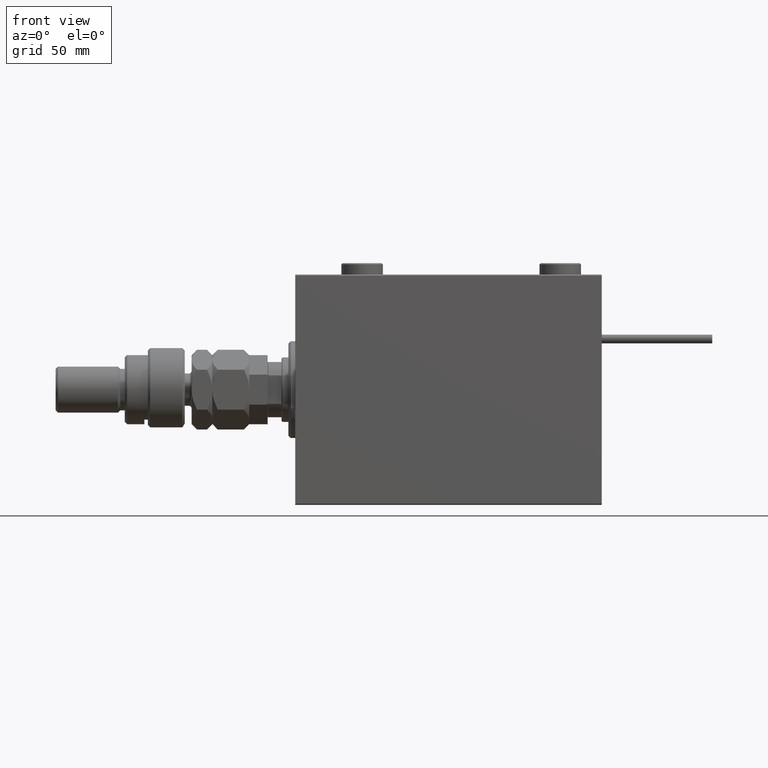
[diagram: clean part render]
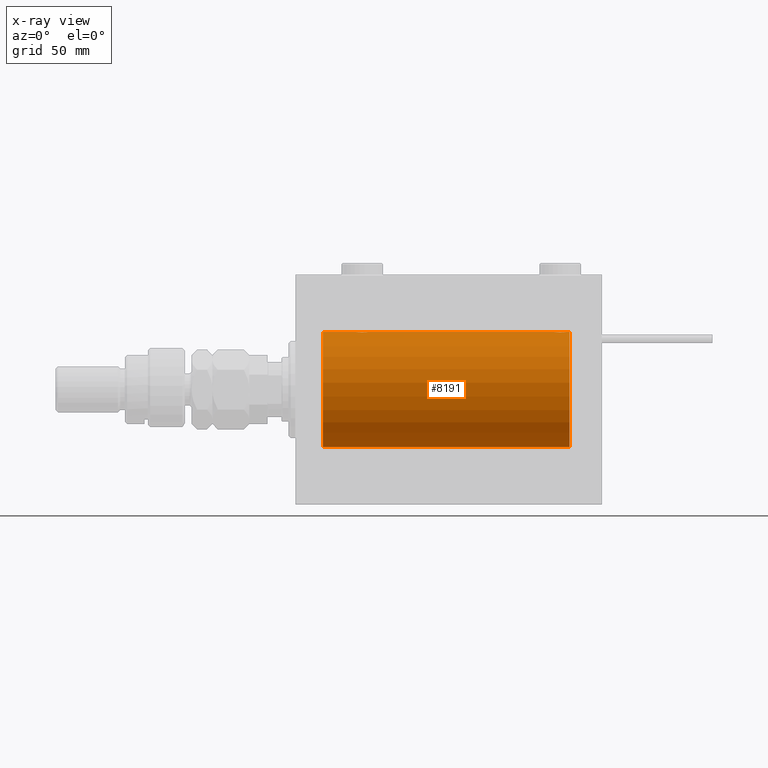
[diagram: x-ray — body ghosted, one internal face saturated and labeled with its STEP entity id]
A machine part, front view, then the same camera in x-ray: the body is ghosted and one INTERNAL B-rep face — a face not visible from any outside direction — is saturated and labeled: STEP entity #8191.
In plain terms, the highlighted cylindrical surface (partial cylindrical patch) has radius 25 mm, axis along (-1, -0, -0).
Its self-contained STEP definition (entity closure, byte-faithful):
#95 = CARTESIAN_POINT ( 'NONE',  ( 26.57985090779070347, -0.6480119923854229524, 24.99212088949390420 ) ) ;
#580 = CARTESIAN_POINT ( 'NONE',  ( 117.2476025101955628, -1.106703319666888508, -24.97594585958024282 ) ) ;
#858 = CARTESIAN_POINT ( 'NONE',  ( 117.4201490922092859, -0.6480119923854245068, -24.99212088949390775 ) ) ;
#1691 = CARTESIAN_POINT ( 'NONE',  ( 113.3487886644089286, -1.884161199660627339, -24.92916496727982789 ) ) ;
#1751 = CARTESIAN_POINT ( 'NONE',  ( 28.67052319885732103, -2.483544361357271857, 24.87635491893501438 ) ) ;
#1774 = ORIENTED_EDGE ( 'NONE', *, *, #32799, .T. ) ;
#2096 = CARTESIAN_POINT ( 'NONE',  ( 27.47743225659810307, -1.989585286700239708, -24.92087098724766392 ) ) ;
#2358 = CARTESIAN_POINT ( 'NONE',  ( 114.1921165759419523, -2.371528299825759856, 24.88734287464370709 ) ) ;
#2368 = CARTESIAN_POINT ( 'NONE',  ( 28.83676410361456632, -2.500125740978188738, -24.87467329022545215 ) ) ;
#2797 = CARTESIAN_POINT ( 'NONE',  ( 31.50000000000000000, -3.359922002512890391E-15, 25.00000000000000000 ) ) ;
#2911 = CARTESIAN_POINT ( 'NONE',  ( 31.49999999999999289, -0.1631750940176170117, -25.00000000000000711 ) ) ;
#3237 = LINE ( 'NONE', #11503, #31576 ) ;
#3640 = CARTESIAN_POINT ( 'NONE',  ( 11.99999999999999645, 0.000000000000000000, 0.000000000000000000 ) ) ;
#3648 = LINE ( 'NONE', #37279, #13373 ) ;
#4517 = CARTESIAN_POINT ( 'NONE',  ( 26.75239748980449761, -1.106703319666885399, 24.97594585958023572 ) ) ;
#4554 = CARTESIAN_POINT ( 'NONE',  ( 119.0000000000000000, 3.061616997868383043E-15, -25.00000000000000000 ) ) ;
#5884 = CARTESIAN_POINT ( 'NONE',  ( 28.35095609830903740, -2.419770561643910689, 24.88263927071751169 ) ) ;
#6151 = CARTESIAN_POINT ( 'NONE',  ( 29.80435660916301899, -2.372734907014175665, 24.88722742718433878 ) ) ;
#6200 = DIRECTION ( 'NONE',  ( -1.000000000000000000, 0.000000000000000000, 0.000000000000000000 ) ) ;
#6209 = CARTESIAN_POINT ( 'NONE',  ( 112.5000000000000000, -1.940203396391078535E-23, 25.00000000000000000 ) ) ;
#6291 = AXIS2_PLACEMENT_3D ( 'NONE', #3640, #16046, #16325 ) ;
#6496 = CARTESIAN_POINT ( 'NONE',  ( 31.37215969408608274, -0.8058335233485438565, -24.98746277938383997 ) ) ;
#6758 = CARTESIAN_POINT ( 'NONE',  ( 117.2460637909406813, -1.109818057797417490, 24.97580694515541921 ) ) ;
#7025 = CARTESIAN_POINT ( 'NONE',  ( 113.0125018416559755, -1.525407911884377965, 24.95379469572361941 ) ) ;
#7035 = CARTESIAN_POINT ( 'NONE',  ( 28.35439333851368815, -2.420689345803754833, -24.88254961038873958 ) ) ;
#7916 = VERTEX_POINT ( 'NONE', #19459 ) ;
#7984 = B_SPLINE_CURVE_WITH_KNOTS ( 'NONE', 3,
 ( #6209, #52227, #39833, #53320, #47828, #44793, #22771, #7025, #23325, #35709, #43978, #23857, #39565, #2358, #40650, #36521, #18626, #27709, #31021, #31306, #19191, #35978, #52507, #52775, #48112, #27165, #48648, #10907, #6758, #23596, #21079, #33466 ),
 .UNSPECIFIED., .F., .F.,
 ( 4, 2, 2, 2, 2, 2, 2, 2, 2, 2, 2, 2, 2, 2, 2, 4 ),
 ( 0.007821024441662341453, 0.008309723826317951326, 0.008798423210973559463, 0.009287122595629169336, 0.009775821980284777474, 0.01026452136494038735, 0.01075322074959599548, 0.01124192013425160536, 0.01173061951890721349, 0.01221931890356282337, 0.01270801828821843324, 0.01319671767287404138, 0.01368541705752964951, 0.01417411644218525939, 0.01466281582684086926, 0.01564021459615210288 ),
 .UNSPECIFIED. ) ;
#8191 = ADVANCED_FACE ( 'NONE', ( #28296 ), #45110, .F. ) ;
#8400 = CARTESIAN_POINT ( 'NONE',  ( 27.47463817756919369, -1.987446652080264720, 24.92104239223420592 ) ) ;
#9209 = CARTESIAN_POINT ( 'NONE',  ( 31.49999999999998579, -0.3305063766663721148, 25.00000000000000000 ) ) ;
#9571 = CARTESIAN_POINT ( 'NONE',  ( 26.50000000000000355, -1.828402720252098442E-15, -25.00000000000000000 ) ) ;
#9690 = CARTESIAN_POINT ( 'NONE',  ( 115.6490439016909590, -2.419770561643918683, -24.88263927071750814 ) ) ;
#9962 = CARTESIAN_POINT ( 'NONE',  ( 114.3543933385136881, -2.420689345803766823, -24.88254961038873958 ) ) ;
#10529 = CIRCLE ( 'NONE', #21935, 25.00000000000000000 ) ;
#10907 = CARTESIAN_POINT ( 'NONE',  ( 117.1682764149395695, -1.255214705003179221, 24.96884293994577675 ) ) ;
#10920 = CARTESIAN_POINT ( 'NONE',  ( 28.67403429960539896, -2.484007091859758543, -24.87630842367763151 ) ) ;
#11191 = CARTESIAN_POINT ( 'NONE',  ( 29.80788342405805835, -2.371528299825740760, -24.88734287464371064 ) ) ;
#11503 = CARTESIAN_POINT ( 'NONE',  ( 119.0000000000000000, 0.000000000000000000, 25.00000000000000000 ) ) ;
#13271 = CARTESIAN_POINT ( 'NONE',  ( 115.8078834240580619, -2.371528299825759412, -24.88734287464370709 ) ) ;
#13373 = VECTOR ( 'NONE', #33405, 1000.000000000000000 ) ;
#13553 = CARTESIAN_POINT ( 'NONE',  ( 116.2538319542450580, -2.169003991399878650, -24.90589728951138326 ) ) ;
#14000 = VERTEX_POINT ( 'NONE', #31122 ) ;
#14155 = CARTESIAN_POINT ( 'NONE',  ( 30.52256774340189693, -1.989585286700245037, 24.92087098724766747 ) ) ;
#14254 = EDGE_CURVE ( 'NONE', #49019, #43169, #20906, .T. ) ;
#14365 = CARTESIAN_POINT ( 'NONE',  ( 116.9874981583439393, -1.525407911884375300, -24.95379469572361586 ) ) ;
#14446 = EDGE_CURVE ( 'NONE', #38885, #18944, #48141, .T. ) ;
#14479 = VERTEX_POINT ( 'NONE', #18657 ) ;
#14776 = CARTESIAN_POINT ( 'NONE',  ( 30.52536182243080631, -1.987446652080256504, -24.92104239223419881 ) ) ;
#15044 = CARTESIAN_POINT ( 'NONE',  ( 26.75393620905933645, -1.109818057797413715, -24.97580694515542277 ) ) ;
#15597 = CARTESIAN_POINT ( 'NONE',  ( 27.74915976075944712, -2.170728182476714174, -24.90574631553725027 ) ) ;
#15683 = B_SPLINE_CURVE_WITH_KNOTS ( 'NONE', 3,
 ( #16405, #21081, #20822, #95, #33211, #4517, #33739, #37621, #50272, #29337, #8400, #37874, #50546, #18026, #5884, #1751, #18566, #39773, #18853, #47222, #6151, #27105, #26828, #14155, #35101, #31244, #34554, #30688, #51352, #39507, #9209, #52447 ),
 .UNSPECIFIED., .F., .F.,
 ( 4, 2, 2, 2, 2, 2, 2, 2, 2, 2, 2, 2, 2, 2, 2, 4 ),
 ( 0.007821024441662275534, 0.008309723826317880202, 0.008798423210973486605, 0.009287122595629093008, 0.009775821980284697676, 0.01026452136494030234, 0.01075322074959590875, 0.01124192013425151515, 0.01173061951890711982, 0.01221931890356272449, 0.01270801828821833089, 0.01319671767287393729, 0.01368541705752954196, 0.01417411644218514663, 0.01466281582684075303, 0.01564021459615196410 ),
 .UNSPECIFIED. ) ;
#16046 = DIRECTION ( 'NONE',  ( -1.000000000000000000, 0.000000000000000000, 0.000000000000000000 ) ) ;
#16095 = VERTEX_POINT ( 'NONE', #2797 ) ;
#16325 = DIRECTION ( 'NONE',  ( 0.000000000000000000, 0.000000000000000000, 1.000000000000000000 ) ) ;
#16405 = CARTESIAN_POINT ( 'NONE',  ( 26.50000000000000355, -1.940558383798427991E-23, 25.00000000000000000 ) ) ;
#17689 = CARTESIAN_POINT ( 'NONE',  ( 116.8841238278647126, -1.651251241585108387, -24.94567559498348430 ) ) ;
#17960 = CARTESIAN_POINT ( 'NONE',  ( 117.5000000000000142, 3.061616978466108082E-15, -25.00000000000000000 ) ) ;
#18026 = CARTESIAN_POINT ( 'NONE',  ( 28.19211657594193809, -2.371528299825749198, 24.88734287464370709 ) ) ;
#18230 = CARTESIAN_POINT ( 'NONE',  ( 116.5253618224307957, -1.987446652080270271, -24.92104239223420592 ) ) ;
#18503 = CARTESIAN_POINT ( 'NONE',  ( 113.1181404585135652, -1.653834020452947362, -24.94550385189584318 ) ) ;
#18566 = CARTESIAN_POINT ( 'NONE',  ( 28.83293504821940090, -2.499872792855082793, 24.87469871246082320 ) ) ;
#18617 = DIRECTION ( 'NONE',  ( 0.000000000000000000, 0.000000000000000000, 1.000000000000000000 ) ) ;
#18626 = CARTESIAN_POINT ( 'NONE',  ( 114.8329350482193831, -2.499872792855093451, 24.87469871246082320 ) ) ;
#18657 = CARTESIAN_POINT ( 'NONE',  ( 11.99999999999999645, 3.061616997868383043E-15, -25.00000000000000000 ) ) ;
#18796 = AXIS2_PLACEMENT_3D ( 'NONE', #24183, #53636, #40985 ) ;
#18846 = EDGE_CURVE ( 'NONE', #14000, #24936, #3237, .T. ) ;
#18853 = CARTESIAN_POINT ( 'NONE',  ( 29.32596570039460104, -2.484007091859765204, 24.87630842367763506 ) ) ;
#18921 = CARTESIAN_POINT ( 'NONE',  ( 31.50000000000000000, 3.061616978460191625E-15, -25.00000000000000000 ) ) ;
#18944 = VERTEX_POINT ( 'NONE', #40712 ) ;
#19191 = CARTESIAN_POINT ( 'NONE',  ( 115.8043566091630083, -2.372734907014184991, 24.88722742718433523 ) ) ;
#19201 = CARTESIAN_POINT ( 'NONE',  ( 27.11814045851354393, -1.653834020452933151, -24.94550385189584674 ) ) ;
#19459 = CARTESIAN_POINT ( 'NONE',  ( 11.99999999999999645, 0.000000000000000000, 25.00000000000000000 ) ) ;
#19728 = EDGE_CURVE ( 'NONE', #18944, #35936, #50297, .T. ) ;
#19746 = CARTESIAN_POINT ( 'NONE',  ( 31.48417840057656747, -0.3254210271412188993, -24.99840249400844883 ) ) ;
#19891 = VECTOR ( 'NONE', #37047, 1000.000000000000000 ) ;
#20635 = DIRECTION ( 'NONE',  ( -1.000000000000000000, -0.000000000000000000, -0.000000000000000000 ) ) ;
#20822 = CARTESIAN_POINT ( 'NONE',  ( 26.51582159942343608, -0.3254210271412225630, 24.99840249400844883 ) ) ;
#20906 = LINE ( 'NONE', #24749, #52444 ) ;
#21079 = CARTESIAN_POINT ( 'NONE',  ( 117.5000000000000284, -0.3305063766663758895, 25.00000000000000355 ) ) ;
#21081 = CARTESIAN_POINT ( 'NONE',  ( 26.50000000000000711, -0.1631750940176214526, 25.00000000000000711 ) ) ;
#21830 = CARTESIAN_POINT ( 'NONE',  ( 115.1670649517806169, -2.499872792855092563, -24.87469871246082320 ) ) ;
#21935 = AXIS2_PLACEMENT_3D ( 'NONE', #27973, #6200, #18617 ) ;
#22011 = EDGE_CURVE ( 'NONE', #50820, #7916, #45886, .T. ) ;
#22369 = CARTESIAN_POINT ( 'NONE',  ( 117.1701129028092652, -1.252049606094348011, -24.96900299967627745 ) ) ;
#22571 = VECTOR ( 'NONE', #43736, 1000.000000000000000 ) ;
#22771 = CARTESIAN_POINT ( 'NONE',  ( 112.8298870971907917, -1.252049606094350453, 24.96900299967627390 ) ) ;
#22813 = VECTOR ( 'NONE', #41230, 1000.000000000000000 ) ;
#23107 = EDGE_CURVE ( 'NONE', #49019, #14000, #10529, .T. ) ;
#23325 = CARTESIAN_POINT ( 'NONE',  ( 113.1158761721352732, -1.651251241585110163, 24.94567559498348430 ) ) ;
#23337 = CARTESIAN_POINT ( 'NONE',  ( 31.17011290280924740, -1.252049606094333578, -24.96900299967627390 ) ) ;
#23596 = CARTESIAN_POINT ( 'NONE',  ( 117.4334935523974934, -0.6588655613945869627, 24.99312727339970053 ) ) ;
#23605 = CARTESIAN_POINT ( 'NONE',  ( 29.32947680114268962, -2.483544361357264751, -24.87635491893502149 ) ) ;
#23607 = EDGE_LOOP ( 'NONE', ( #52416, #31756, #51770, #39743, #39322, #28265, #46568, #39290, #1774, #42788, #38664, #51482 ) ) ;
#23857 = CARTESIAN_POINT ( 'NONE',  ( 113.7461680457549846, -2.169003991399879983, 24.90589728951138326 ) ) ;
#24032 = EDGE_CURVE ( 'NONE', #38024, #24936, #7984, .T. ) ;
#24161 = CARTESIAN_POINT ( 'NONE',  ( 119.0000000000000000, 0.000000000000000000, 25.00000000000000000 ) ) ;
#24183 = CARTESIAN_POINT ( 'NONE',  ( 119.0000000000000000, 0.000000000000000000, 0.000000000000000000 ) ) ;
#24749 = CARTESIAN_POINT ( 'NONE',  ( 119.0000000000000000, 3.061616997868383043E-15, -25.00000000000000000 ) ) ;
#24936 = VERTEX_POINT ( 'NONE', #38491 ) ;
#26214 = CARTESIAN_POINT ( 'NONE',  ( 113.4774322565981635, -1.989585286700257694, -24.92087098724766747 ) ) ;
#26482 = CARTESIAN_POINT ( 'NONE',  ( 115.3294768011427038, -2.483544361357281183, -24.87635491893501793 ) ) ;
#26763 = CARTESIAN_POINT ( 'NONE',  ( 114.1956433908369775, -2.372734907014183214, -24.88722742718433523 ) ) ;
#26828 = CARTESIAN_POINT ( 'NONE',  ( 30.25084023924055998, -2.170728182476720391, 24.90574631553725027 ) ) ;
#26925 = CARTESIAN_POINT ( 'NONE',  ( 119.0000000000000000, 3.061616997868383043E-15, -25.00000000000000000 ) ) ;
#27105 = CARTESIAN_POINT ( 'NONE',  ( 30.10723845838410284, -2.247417070759897495, 24.89885693081946272 ) ) ;
#27165 = CARTESIAN_POINT ( 'NONE',  ( 116.8818595414864916, -1.653834020452947362, 24.94550385189584318 ) ) ;
#27175 = CARTESIAN_POINT ( 'NONE',  ( 27.34878866440888601, -1.884161199660611796, -24.92916496727982434 ) ) ;
#27709 = CARTESIAN_POINT ( 'NONE',  ( 115.1632358963854585, -2.500125740978206057, 24.87467329022545570 ) ) ;
#27860 = CARTESIAN_POINT ( 'NONE',  ( 112.7539362090593187, -1.109818057797429036, -24.97580694515541921 ) ) ;
#27973 = CARTESIAN_POINT ( 'NONE',  ( 119.0000000000000000, 0.000000000000000000, 0.000000000000000000 ) ) ;
#28256 = CARTESIAN_POINT ( 'NONE',  ( 30.25383195424503313, -2.169003991399864884, -24.90589728951138682 ) ) ;
#28265 = ORIENTED_EDGE ( 'NONE', *, *, #45813, .T. ) ;
#28296 = FACE_OUTER_BOUND ( 'NONE', #23607, .T. ) ;
#28908 = CARTESIAN_POINT ( 'NONE',  ( 117.5000000000000142, 3.061616978466108082E-15, -25.00000000000000000 ) ) ;
#29337 = CARTESIAN_POINT ( 'NONE',  ( 27.34616663850662377, -1.881857718844717642, 24.92933960374833902 ) ) ;
#30360 = CARTESIAN_POINT ( 'NONE',  ( 114.6740342996053670, -2.484007091859773197, -24.87630842367763151 ) ) ;
#30629 = CARTESIAN_POINT ( 'NONE',  ( 116.6538333614933691, -1.881857718844724081, -24.92933960374833546 ) ) ;
#30688 = CARTESIAN_POINT ( 'NONE',  ( 31.16827641493957302, -1.255214705003183440, 24.96884293994578385 ) ) ;
#31021 = CARTESIAN_POINT ( 'NONE',  ( 115.3259657003946046, -2.484007091859774086, 24.87630842367763151 ) ) ;
#31122 = CARTESIAN_POINT ( 'NONE',  ( 119.0000000000000000, 0.000000000000000000, 25.00000000000000000 ) ) ;
#31244 = CARTESIAN_POINT ( 'NONE',  ( 30.88185954148645962, -1.653834020452937814, 24.94550385189585029 ) ) ;
#31306 = CARTESIAN_POINT ( 'NONE',  ( 115.6456066614863403, -2.420689345803769044, 24.88254961038873958 ) ) ;
#31576 = VECTOR ( 'NONE', #44589, 1000.000000000000000 ) ;
#31714 = CARTESIAN_POINT ( 'NONE',  ( 112.5000000000000000, -0.3305063766663817737, -25.00000000000000355 ) ) ;
#31756 = ORIENTED_EDGE ( 'NONE', *, *, #14254, .T. ) ;
#31852 = CARTESIAN_POINT ( 'NONE',  ( 26.50000000000000355, -1.828402720252098442E-15, -25.00000000000000000 ) ) ;
#32265 = CARTESIAN_POINT ( 'NONE',  ( 112.8317235850604163, -1.255214705003194764, -24.96884293994577675 ) ) ;
#32666 = CARTESIAN_POINT ( 'NONE',  ( 30.98749815834397481, -1.525407911884360868, -24.95379469572361941 ) ) ;
#32799 = EDGE_CURVE ( 'NONE', #50820, #16095, #15683, .T. ) ;
#33182 = EDGE_CURVE ( 'NONE', #43169, #38885, #35392, .T. ) ;
#33211 = CARTESIAN_POINT ( 'NONE',  ( 26.62784030591392792, -0.8058335233485480753, 24.98746277938383287 ) ) ;
#33405 = DIRECTION ( 'NONE',  ( -1.000000000000000000, -0.000000000000000000, -0.000000000000000000 ) ) ;
#33466 = CARTESIAN_POINT ( 'NONE',  ( 117.5000000000000142, 2.971051067387116602E-15, 25.00000000000000000 ) ) ;
#33739 = CARTESIAN_POINT ( 'NONE',  ( 26.82988709719076681, -1.252049606094339795, 24.96900299967627390 ) ) ;
#34217 = CARTESIAN_POINT ( 'NONE',  ( 117.5000000000000142, -0.1631750940176189824, -25.00000000000000355 ) ) ;
#34554 = CARTESIAN_POINT ( 'NONE',  ( 30.98538033717094464, -1.528152964861312801, 24.95362559291378801 ) ) ;
#35039 = CARTESIAN_POINT ( 'NONE',  ( 114.8367641036145557, -2.500125740978204725, -24.87467329022545570 ) ) ;
#35101 = CARTESIAN_POINT ( 'NONE',  ( 30.65121133559112820, -1.884161199660616459, 24.92916496727982434 ) ) ;
#35392 = B_SPLINE_CURVE_WITH_KNOTS ( 'NONE', 3,
 ( #17960, #34217, #38362, #858, #51561, #580, #22369, #14365, #17689, #30629, #18230, #13553, #47422, #13271, #9690, #26482, #21830, #35039, #30360, #9962, #26763, #43582, #47162, #26214, #1691, #18503, #53460, #32265, #27860, #35854, #31714, #52915 ),
 .UNSPECIFIED., .F., .F.,
 ( 4, 2, 2, 2, 2, 2, 2, 2, 2, 2, 2, 2, 2, 2, 2, 4 ),
 ( 0.007821024441662320636, 0.008309723826317927040, 0.008798423210973533443, 0.009287122595629141580, 0.009775821980284747983, 0.01026452136494035439, 0.01075322074959596079, 0.01124192013425156719, 0.01173061951890717533, 0.01221931890356278000, 0.01270801828821838814, 0.01319671767287399454, 0.01368541705752960094, 0.01417411644218520735, 0.01466281582684081375, 0.01564021459615204390 ),
 .UNSPECIFIED. ) ;
#35709 = CARTESIAN_POINT ( 'NONE',  ( 113.3461666385066309, -1.881857718844725857, 24.92933960374833546 ) ) ;
#35719 = CARTESIAN_POINT ( 'NONE',  ( 30.88412382786471611, -1.651251241585095508, -24.94567559498348785 ) ) ;
#35770 = CARTESIAN_POINT ( 'NONE',  ( 26.50000000000000355, -1.940558383798427991E-23, 25.00000000000000000 ) ) ;
#35854 = CARTESIAN_POINT ( 'NONE',  ( 112.5665064476025350, -0.6588655613946003964, -24.99312727339970053 ) ) ;
#35936 = VERTEX_POINT ( 'NONE', #9571 ) ;
#35978 = CARTESIAN_POINT ( 'NONE',  ( 116.1072384583841171, -2.247417070759907709, 24.89885693081946272 ) ) ;
#35989 = CARTESIAN_POINT ( 'NONE',  ( 26.83172358506042698, -1.255214705003176112, -24.96884293994577320 ) ) ;
#36480 = CARTESIAN_POINT ( 'NONE',  ( 112.5000000000000000, -1.076612927118312630E-14, -25.00000000000000000 ) ) ;
#36521 = CARTESIAN_POINT ( 'NONE',  ( 114.6705231988572962, -2.483544361357281627, 24.87635491893501793 ) ) ;
#37047 = DIRECTION ( 'NONE',  ( -1.000000000000000000, -0.000000000000000000, -0.000000000000000000 ) ) ;
#37279 = CARTESIAN_POINT ( 'NONE',  ( 119.0000000000000000, 3.061616997868383043E-15, -25.00000000000000000 ) ) ;
#37332 = CARTESIAN_POINT ( 'NONE',  ( 119.0000000000000000, 0.000000000000000000, 25.00000000000000000 ) ) ;
#37621 = CARTESIAN_POINT ( 'NONE',  ( 27.01250184165601809, -1.525407911884367085, 24.95379469572361941 ) ) ;
#37874 = CARTESIAN_POINT ( 'NONE',  ( 27.74616804575498108, -2.169003991399871989, 24.90589728951138326 ) ) ;
#38024 = VERTEX_POINT ( 'NONE', #39185 ) ;
#38362 = CARTESIAN_POINT ( 'NONE',  ( 117.4841784005765959, -0.3254210271412224520, -24.99840249400844883 ) ) ;
#38491 = CARTESIAN_POINT ( 'NONE',  ( 117.5000000000000142, 2.971051067387116602E-15, 25.00000000000000000 ) ) ;
#38664 = ORIENTED_EDGE ( 'NONE', *, *, #24032, .T. ) ;
#38885 = VERTEX_POINT ( 'NONE', #36480 ) ;
#39185 = CARTESIAN_POINT ( 'NONE',  ( 112.5000000000000000, -1.940203396391078535E-23, 25.00000000000000000 ) ) ;
#39290 = ORIENTED_EDGE ( 'NONE', *, *, #22011, .F. ) ;
#39322 = ORIENTED_EDGE ( 'NONE', *, *, #19728, .T. ) ;
#39507 = CARTESIAN_POINT ( 'NONE',  ( 31.43349355239747567, -0.6588655613945881839, 24.99312727339970053 ) ) ;
#39565 = CARTESIAN_POINT ( 'NONE',  ( 113.8896320349113864, -2.245863995402913371, 24.89899750494197050 ) ) ;
#39743 = ORIENTED_EDGE ( 'NONE', *, *, #14446, .T. ) ;
#39773 = CARTESIAN_POINT ( 'NONE',  ( 29.16323589638543723, -2.500125740978195843, 24.87467329022545570 ) ) ;
#39833 = CARTESIAN_POINT ( 'NONE',  ( 112.5158215994234467, -0.3254210271412264488, 24.99840249400844883 ) ) ;
#39842 = CARTESIAN_POINT ( 'NONE',  ( 30.11036796508864555, -2.245863995402895164, -24.89899750494197406 ) ) ;
#40121 = CARTESIAN_POINT ( 'NONE',  ( 29.64904390169096970, -2.419770561643902695, -24.88263927071750459 ) ) ;
#40394 = CARTESIAN_POINT ( 'NONE',  ( 27.01461966282905891, -1.528152964861306584, -24.95362559291379156 ) ) ;
#40650 = CARTESIAN_POINT ( 'NONE',  ( 114.3509560983090125, -2.419770561643919127, 24.88263927071750814 ) ) ;
#40712 = CARTESIAN_POINT ( 'NONE',  ( 31.50000000000000000, 3.061616978460191625E-15, -25.00000000000000000 ) ) ;
#40944 = CARTESIAN_POINT ( 'NONE',  ( 31.24760251019551305, -1.106703319666880514, -24.97594585958023927 ) ) ;
#40985 = DIRECTION ( 'NONE',  ( 0.000000000000000000, 0.000000000000000000, 1.000000000000000000 ) ) ;
#41191 = LINE ( 'NONE', #37332, #19891 ) ;
#41230 = DIRECTION ( 'NONE',  ( -1.000000000000000000, -0.000000000000000000, -0.000000000000000000 ) ) ;
#42788 = ORIENTED_EDGE ( 'NONE', *, *, #53716, .F. ) ;
#43169 = VERTEX_POINT ( 'NONE', #28908 ) ;
#43582 = CARTESIAN_POINT ( 'NONE',  ( 113.8927615416159256, -2.247417070759905933, -24.89885693081946272 ) ) ;
#43736 = DIRECTION ( 'NONE',  ( -1.000000000000000000, -0.000000000000000000, -0.000000000000000000 ) ) ;
#43978 = CARTESIAN_POINT ( 'NONE',  ( 113.4746381775692043, -1.987446652080271159, 24.92104239223420592 ) ) ;
#43989 = CARTESIAN_POINT ( 'NONE',  ( 27.89276154161590426, -2.247417070759891278, -24.89885693081946272 ) ) ;
#44538 = CARTESIAN_POINT ( 'NONE',  ( 30.65383336149337623, -1.881857718844709870, -24.92933960374833191 ) ) ;
#44589 = DIRECTION ( 'NONE',  ( -1.000000000000000000, -0.000000000000000000, -0.000000000000000000 ) ) ;
#44793 = CARTESIAN_POINT ( 'NONE',  ( 112.7523974898045083, -1.106703319666891838, 24.97594585958023217 ) ) ;
#44857 = EDGE_CURVE ( 'NONE', #14479, #7916, #52032, .T. ) ;
#45110 = CYLINDRICAL_SURFACE ( 'NONE', #18796, 25.00000000000000000 ) ;
#45813 = EDGE_CURVE ( 'NONE', #35936, #14479, #3648, .T. ) ;
#45886 = LINE ( 'NONE', #24161, #22813 ) ;
#46568 = ORIENTED_EDGE ( 'NONE', *, *, #44857, .T. ) ;
#47162 = CARTESIAN_POINT ( 'NONE',  ( 113.7491597607594542, -2.170728182476731050, -24.90574631553725027 ) ) ;
#47222 = CARTESIAN_POINT ( 'NONE',  ( 29.64560666148631896, -2.420689345803761050, 24.88254961038873958 ) ) ;
#47422 = CARTESIAN_POINT ( 'NONE',  ( 116.1103679650886704, -2.245863995402912927, -24.89899750494197050 ) ) ;
#47828 = CARTESIAN_POINT ( 'NONE',  ( 112.6278403059139350, -0.8058335233485532934, 24.98746277938383287 ) ) ;
#48112 = CARTESIAN_POINT ( 'NONE',  ( 116.6512113355911424, -1.884161199660627561, 24.92916496727982789 ) ) ;
#48141 = LINE ( 'NONE', #26925, #22571 ) ;
#48388 = CARTESIAN_POINT ( 'NONE',  ( 29.16706495178059910, -2.499872792855075687, -24.87469871246081965 ) ) ;
#48648 = CARTESIAN_POINT ( 'NONE',  ( 116.9853803371709517, -1.528152964861310803, 24.95362559291378091 ) ) ;
#48657 = CARTESIAN_POINT ( 'NONE',  ( 31.42014909220928942, -0.6480119923854186226, -24.99212088949390420 ) ) ;
#49019 = VERTEX_POINT ( 'NONE', #4554 ) ;
#49199 = CARTESIAN_POINT ( 'NONE',  ( 26.50000000000001066, -0.3305063766663757785, -25.00000000000000355 ) ) ;
#50272 = CARTESIAN_POINT ( 'NONE',  ( 27.11587617213528745, -1.651251241585102836, 24.94567559498349141 ) ) ;
#50297 = B_SPLINE_CURVE_WITH_KNOTS ( 'NONE', 3,
 ( #18921, #2911, #19746, #48657, #6496, #40944, #23337, #32666, #35719, #44538, #14776, #28256, #39842, #11191, #40121, #23605, #48388, #2368, #10920, #7035, #53598, #43989, #15597, #2096, #27175, #19201, #40394, #35989, #15044, #53331, #49199, #31852 ),
 .UNSPECIFIED., .F., .F.,
 ( 4, 2, 2, 2, 2, 2, 2, 2, 2, 2, 2, 2, 2, 2, 2, 4 ),
 ( 0.007821024441662299820, 0.008309723826317909692, 0.008798423210973517830, 0.009287122595629124233, 0.009775821980284728902, 0.01026452136494033357, 0.01075322074959593997, 0.01124192013425154464, 0.01173061951890715104, 0.01221931890356275571, 0.01270801828821836038, 0.01319671767287396852, 0.01368541705752957319, 0.01417411644218517959, 0.01466281582684078426, 0.01564021459615199533 ),
 .UNSPECIFIED. ) ;
#50546 = CARTESIAN_POINT ( 'NONE',  ( 27.88963203491136156, -2.245863995402901381, 24.89899750494197050 ) ) ;
#50820 = VERTEX_POINT ( 'NONE', #35770 ) ;
#51352 = CARTESIAN_POINT ( 'NONE',  ( 31.24606379094067066, -1.109818057797417046, 24.97580694515541921 ) ) ;
#51482 = ORIENTED_EDGE ( 'NONE', *, *, #18846, .F. ) ;
#51561 = CARTESIAN_POINT ( 'NONE',  ( 117.3721596940861076, -0.8058335233485500737, -24.98746277938383287 ) ) ;
#51770 = ORIENTED_EDGE ( 'NONE', *, *, #33182, .T. ) ;
#52032 = CIRCLE ( 'NONE', #6291, 25.00000000000000000 ) ;
#52227 = CARTESIAN_POINT ( 'NONE',  ( 112.4999999999999716, -0.1631750940176235343, 25.00000000000000355 ) ) ;
#52416 = ORIENTED_EDGE ( 'NONE', *, *, #23107, .F. ) ;
#52444 = VECTOR ( 'NONE', #20635, 1000.000000000000000 ) ;
#52447 = CARTESIAN_POINT ( 'NONE',  ( 31.50000000000000000, -3.359922002512890391E-15, 25.00000000000000000 ) ) ;
#52507 = CARTESIAN_POINT ( 'NONE',  ( 116.2508402392405458, -2.170728182476731938, 24.90574631553725027 ) ) ;
#52775 = CARTESIAN_POINT ( 'NONE',  ( 116.5225677434019218, -1.989585286700258138, 24.92087098724766747 ) ) ;
#52915 = CARTESIAN_POINT ( 'NONE',  ( 112.5000000000000000, -1.076612927118312630E-14, -25.00000000000000000 ) ) ;
#53320 = CARTESIAN_POINT ( 'NONE',  ( 112.5798509077907141, -0.6480119923854288366, 24.99212088949390775 ) ) ;
#53331 = CARTESIAN_POINT ( 'NONE',  ( 26.56650644760253499, -0.6588655613945862966, -24.99312727339971119 ) ) ;
#53460 = CARTESIAN_POINT ( 'NONE',  ( 113.0146196628290340, -1.528152964861324570, -24.95362559291378091 ) ) ;
#53598 = CARTESIAN_POINT ( 'NONE',  ( 28.19564339083697746, -2.372734907014167671, -24.88722742718433167 ) ) ;
#53636 = DIRECTION ( 'NONE',  ( -1.000000000000000000, -0.000000000000000000, -0.000000000000000000 ) ) ;
#53716 = EDGE_CURVE ( 'NONE', #38024, #16095, #41191, .T. ) ;